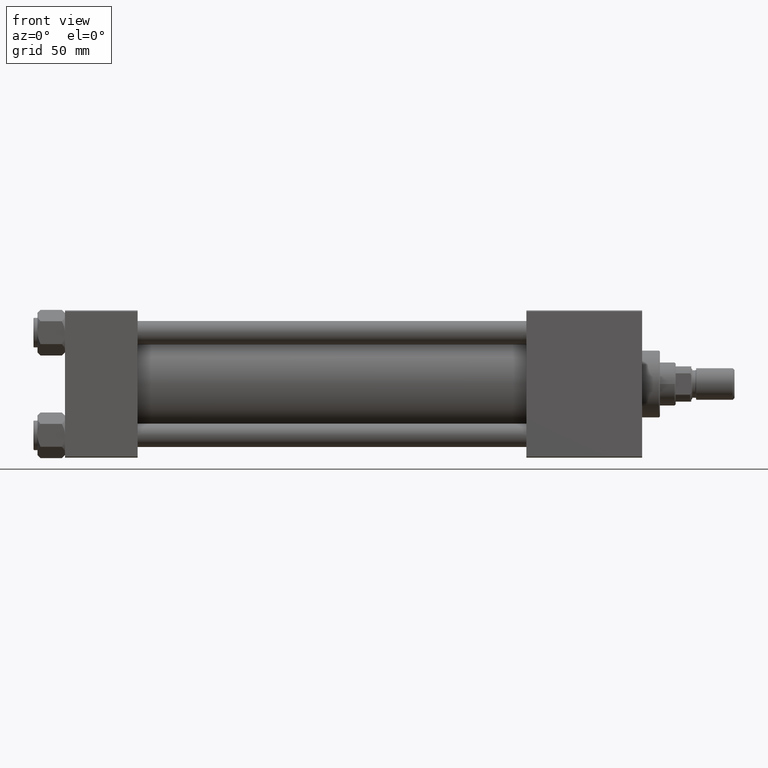
[diagram: clean part render]
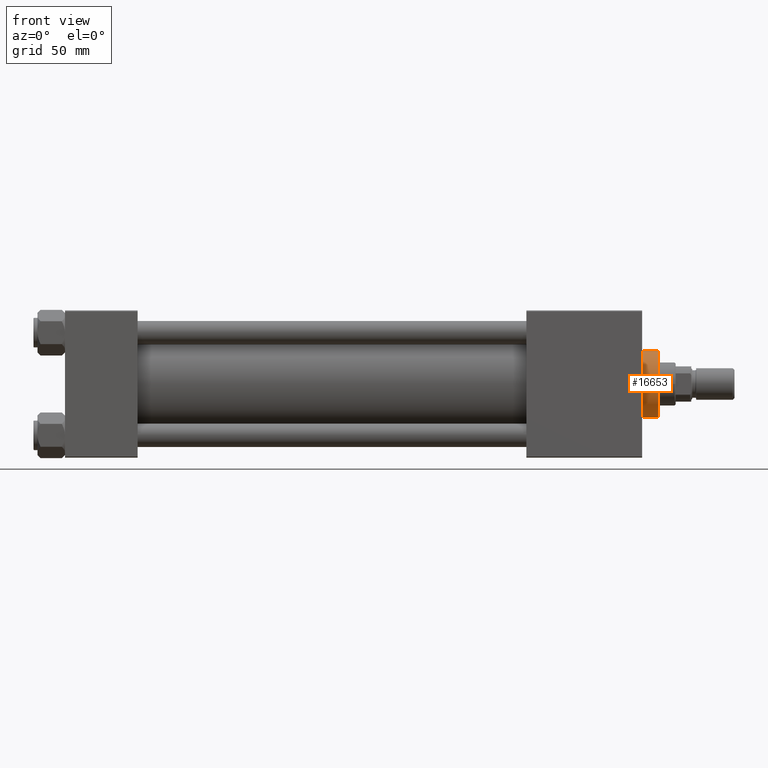
[diagram: same view with one face highlighted and labeled with its STEP entity id]
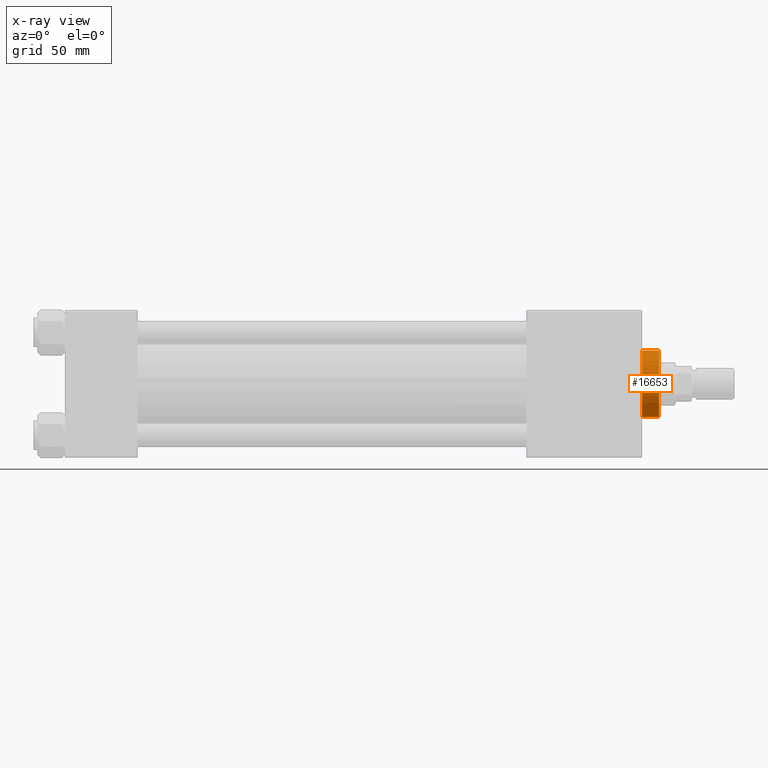
[diagram: x-ray of the same camera — body ghosted, the highlighted face saturated]
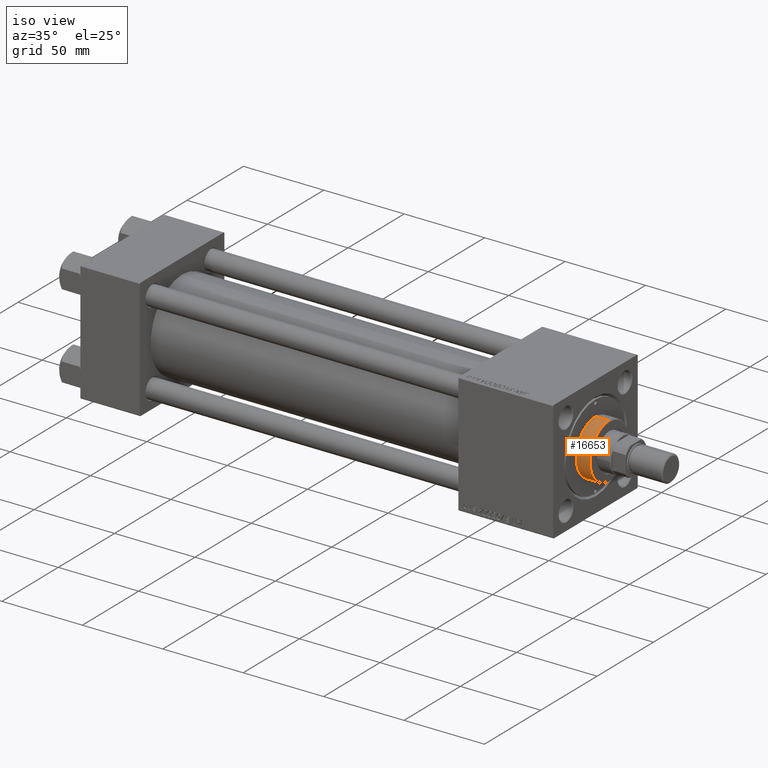
[diagram: same view with one face highlighted and labeled with its STEP entity id]
A machine part, front view. The second image highlights one B-rep face of the part: STEP entity #16653.
The next image is the same camera in x-ray: the body ghosted, the highlighted face saturated — about 0% of this face is hidden behind the body in this view.
A second angle (iso view) of the same face is appended — the face is thin or edge-on in the first view.
In plain terms, the highlighted cylindrical surface (edge-blend (fillet) strip) has radius 17 mm, axis along (-1, -0, -0).
Its self-contained STEP definition (entity closure, byte-faithful):
#1943 = DIRECTION ( 'NONE',  ( 1.000000000000000000, 0.000000000000000000, 0.000000000000000000 ) ) ;
#2966 = AXIS2_PLACEMENT_3D ( 'NONE', #9423, #37151, #1943 ) ;
#3317 = CARTESIAN_POINT ( 'NONE',  ( -17.00000000000000000, 0.000000000000000000, 37.19999999999999574 ) ) ;
#3521 = CYLINDRICAL_SURFACE ( 'NONE', #32393, 17.00000000000000000 ) ;
#4037 = DIRECTION ( 'NONE',  ( -1.000000000000000000, 0.000000000000000000, 0.000000000000000000 ) ) ;
#4616 = LINE ( 'NONE', #35196, #13501 ) ;
#5905 = ORIENTED_EDGE ( 'NONE', *, *, #35140, .T. ) ;
#6338 = CARTESIAN_POINT ( 'NONE',  ( 0.000000000000000000, 0.000000000000000000, 37.19999999999999574 ) ) ;
#6773 = ORIENTED_EDGE ( 'NONE', *, *, #18488, .T. ) ;
#8818 = VERTEX_POINT ( 'NONE', #3317 ) ;
#9423 = CARTESIAN_POINT ( 'NONE',  ( 0.000000000000000000, 0.000000000000000000, 28.69999999999999929 ) ) ;
#10218 = LINE ( 'NONE', #46406, #50658 ) ;
#12401 = EDGE_LOOP ( 'NONE', ( #36799, #6773, #5905, #44385 ) ) ;
#12794 = AXIS2_PLACEMENT_3D ( 'NONE', #6338, #38181, #45634 ) ;
#13501 = VECTOR ( 'NONE', #47262, 1000.000000000000000 ) ;
#15328 = DIRECTION ( 'NONE',  ( -0.000000000000000000, -0.000000000000000000, -1.000000000000000000 ) ) ;
#16653 = ADVANCED_FACE ( 'NONE', ( #27433 ), #3521, .T. ) ;
#18488 = EDGE_CURVE ( 'NONE', #20575, #8818, #19352, .T. ) ;
#18578 = CIRCLE ( 'NONE', #2966, 17.00000000000000000 ) ;
#19352 = CIRCLE ( 'NONE', #12794, 17.00000000000000000 ) ;
#20575 = VERTEX_POINT ( 'NONE', #49473 ) ;
#21943 = CARTESIAN_POINT ( 'NONE',  ( -17.00000000000000000, 0.000000000000000000, 28.69999999999999929 ) ) ;
#23253 = CARTESIAN_POINT ( 'NONE',  ( 17.00000000000000000, 2.081899558550500280E-15, 28.69999999999999929 ) ) ;
#23578 = DIRECTION ( 'NONE',  ( -0.000000000000000000, -0.000000000000000000, -1.000000000000000000 ) ) ;
#23901 = EDGE_CURVE ( 'NONE', #47731, #34299, #18578, .T. ) ;
#27433 = FACE_OUTER_BOUND ( 'NONE', #12401, .T. ) ;
#32393 = AXIS2_PLACEMENT_3D ( 'NONE', #42342, #23578, #4037 ) ;
#34299 = VERTEX_POINT ( 'NONE', #23253 ) ;
#35140 = EDGE_CURVE ( 'NONE', #8818, #47731, #4616, .T. ) ;
#35196 = CARTESIAN_POINT ( 'NONE',  ( -17.00000000000000000, 0.000000000000000000, 37.69999999999999574 ) ) ;
#36799 = ORIENTED_EDGE ( 'NONE', *, *, #45179, .F. ) ;
#37151 = DIRECTION ( 'NONE',  ( 0.000000000000000000, 0.000000000000000000, 1.000000000000000000 ) ) ;
#38181 = DIRECTION ( 'NONE',  ( 0.000000000000000000, 0.000000000000000000, -1.000000000000000000 ) ) ;
#42342 = CARTESIAN_POINT ( 'NONE',  ( 0.000000000000000000, 0.000000000000000000, 37.69999999999999574 ) ) ;
#44385 = ORIENTED_EDGE ( 'NONE', *, *, #23901, .T. ) ;
#45179 = EDGE_CURVE ( 'NONE', #20575, #34299, #10218, .T. ) ;
#45634 = DIRECTION ( 'NONE',  ( 1.000000000000000000, 0.000000000000000000, 0.000000000000000000 ) ) ;
#46406 = CARTESIAN_POINT ( 'NONE',  ( 17.00000000000000000, 2.081899558550500280E-15, 37.69999999999999574 ) ) ;
#47262 = DIRECTION ( 'NONE',  ( -0.000000000000000000, -0.000000000000000000, -1.000000000000000000 ) ) ;
#47731 = VERTEX_POINT ( 'NONE', #21943 ) ;
#49473 = CARTESIAN_POINT ( 'NONE',  ( 17.00000000000000000, 2.081899558550500280E-15, 37.19999999999999574 ) ) ;
#50658 = VECTOR ( 'NONE', #15328, 1000.000000000000000 ) ;